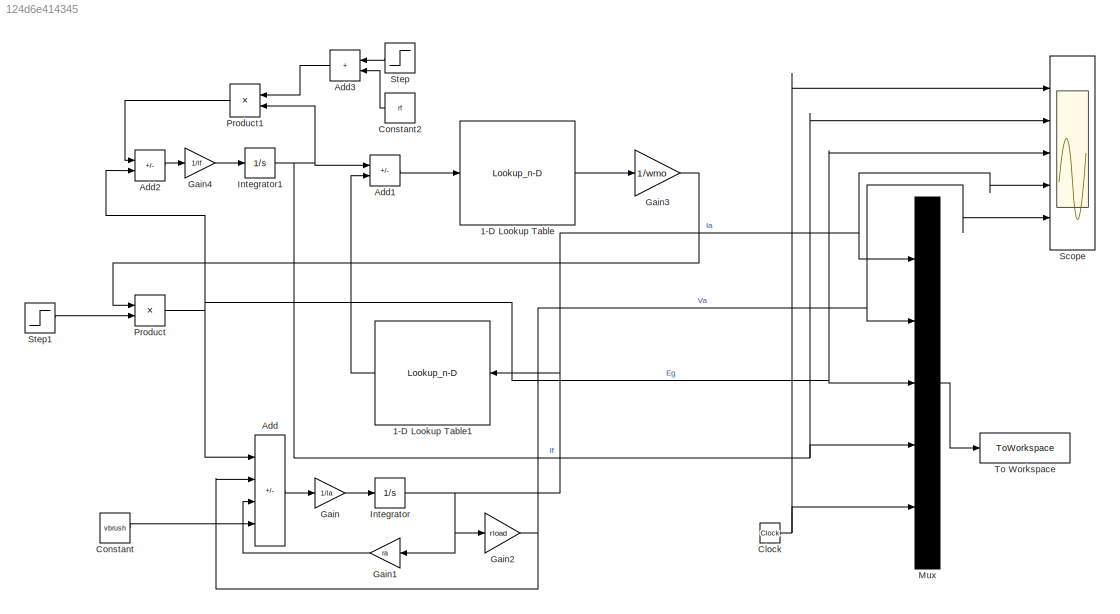
MODEL slx_124d6e414345
KIND model
CONFIG AbsTol = auto
CONFIG EnableMultiTasking = off
CONFIG FixedStep = auto
CONFIG MaxStep = auto
CONFIG MinStep = auto
CONFIG RelTol = 1e-3
CONFIG SampleTimeConstraint = Unconstrained
CONFIG Solver = VariableStepAuto
CONFIG SolverName = VariableStepAuto
CONFIG StartTime = 0.0
CONFIG StopTime = 5
BLOCK [Lookup_n-D] 1-D Lookup Table
  BreakpointsForDimension1 = [0 0.05 0.1 0.13 0.18 0.22 0.26 0.32 0.36 0.4 0.47 0.54 0.575 0.61 0.64 0.68 0.71 0.74 0.78 0.82 0.86 0.9 0.93 1.0 1.1 1.2 1.3 1.4 1.5]
  InternalRulePriority = Speed
  NumberOfTableDimensions = 1
  Ports = [1, 1]
  RndMeth = Simplest
  Table = [7.5 12 20 24 32 40 48 59 66 74 86 97 102.5 107.5 112 117 121 125 130 135 140 143 146 152 158 164 168 172 175]
BLOCK [Lookup_n-D] 1-D Lookup Table1
  BreakpointsForDimension1 = Ia
  InternalRulePriority = Speed
  NumberOfTableDimensions = 1
  Ports = [1, 1]
  RndMeth = Simplest
  Table = 0.04*abs(atan(Ia)) + 0.0001*Ia.^2
BLOCK [Sum] Add
  IconShape = rectangular
  Inputs = +---
  Ports = [4, 1]
BLOCK [Sum] Add1
  IconShape = rectangular
  Inputs = +-
  Ports = [2, 1]
BLOCK [Sum] Add2
  IconShape = rectangular
  Inputs = -+
  Ports = [2, 1]
BLOCK [Sum] Add3
  IconShape = rectangular
  Ports = [2, 1]
BLOCK [Clock] Clock
BLOCK [Constant] Constant
  Value = vbrush
BLOCK [Constant] Constant2
  Value = rf
BLOCK [Gain] Gain
  Gain = 1/la
BLOCK [Gain] Gain1
  Gain = ra
BLOCK [Gain] Gain2
  Gain = rload
BLOCK [Gain] Gain3
  Gain = 1/wmo
BLOCK [Gain] Gain4
  Gain = 1/lf
BLOCK [Integrator] Integrator
  Ports = [1, 1]
BLOCK [Integrator] Integrator1
  Ports = [1, 1]
BLOCK [Mux] Mux
  DisplayOption = bar
  Inputs = 5
  Ports = [5, 1]
BLOCK [Product] Product
  Ports = [2, 1]
BLOCK [Product] Product1
  Ports = [2, 1]
BLOCK [Scope] Scope
  Floating = off
  NumInputPorts = 5
  Ports = [5]
  ScopeSpecificationString = Simulink.scopes.TimeScopeBlockCfg('CurrentConfiguration', extmgr.ConfigurationSet(extmgr.Configuration('Core','General UI',true),extmgr.Configuration('Core','Source UI',true),extmgr.Configuration('Sources','WiredSimulink',true),extmgr.Configuration('Visuals','Time Domain',true,'SerializedDisplays',{struct('MinYLimReal','-0.625','MaxYLimReal','5.625','YLabelReal','','MinYLimMag','0.00000','MaxYLimM...<+4763ch>
BLOCK [Step] Step
  After = 0
  Before = rrh
  SampleTime = 0
  Time = 10
BLOCK [Step] Step1
  After = wmrated
  SampleTime = 0
  Time = 0
BLOCK [ToWorkspace] To Workspace
  FixptAsFi = on
  MaxDataPoints = inf
  Ports = [1]
  SampleTime = -1
  VariableName = y
LINE 1-D Lookup Table1:1 -> Add1:2
LINE 1-D Lookup Table:1 -> Gain3:1
LINE Add1:1 -> 1-D Lookup Table:1
LINE Add2:1 -> Gain4:1
LINE Add3:1 -> Product1:1
LINE Add:1 -> Gain:1
NET Clock:1 -> Mux:5, Scope:1
LINE Constant2:1 -> Add3:2
LINE Constant:1 -> Add:4
LINE Gain1:1 -> Add:3
NET Gain2:1 -> Add:2, Mux:2, Scope:5
LINE Gain3:1 -> Product:1
LINE Gain4:1 -> Integrator1:1
LINE Gain:1 -> Integrator:1
NET Integrator1:1 -> Add1:1, Mux:4, Product1:2, Scope:2
NET Integrator:1 -> 1-D Lookup Table1:1, Gain1:1, Gain2:1, Mux:1, Scope:4
LINE Mux:1 -> To Workspace:1
LINE Product1:1 -> Add2:1
NET Product:1 -> Add2:2, Add:1, Mux:3, Scope:3
LINE Step1:1 -> Product:2
LINE Step:1 -> Add3:1
note: NET lines group one-source signal fan-out (src -> all destinations, sorted); 1:1 wires keep LINE
